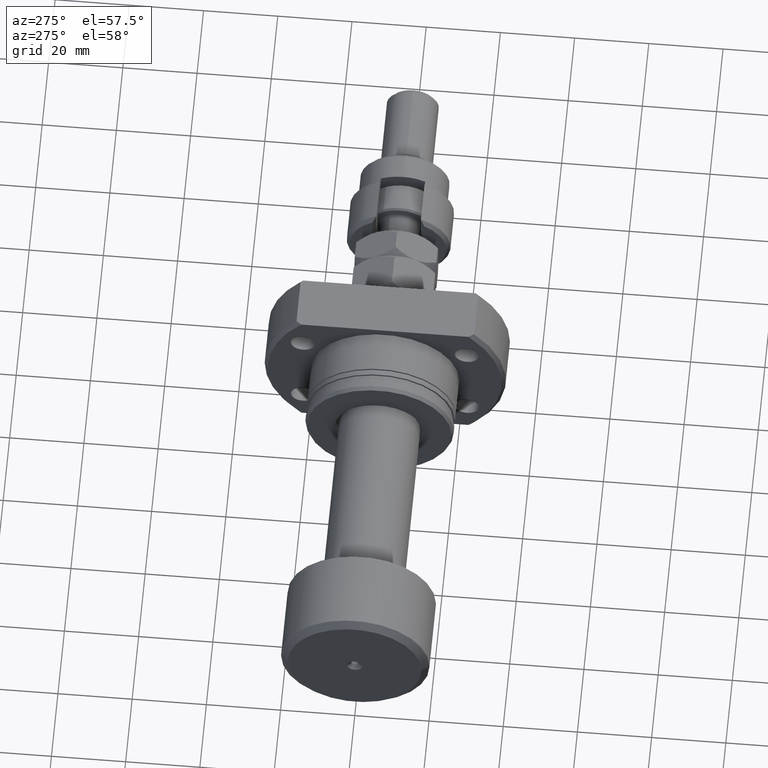
[diagram: clean part render]
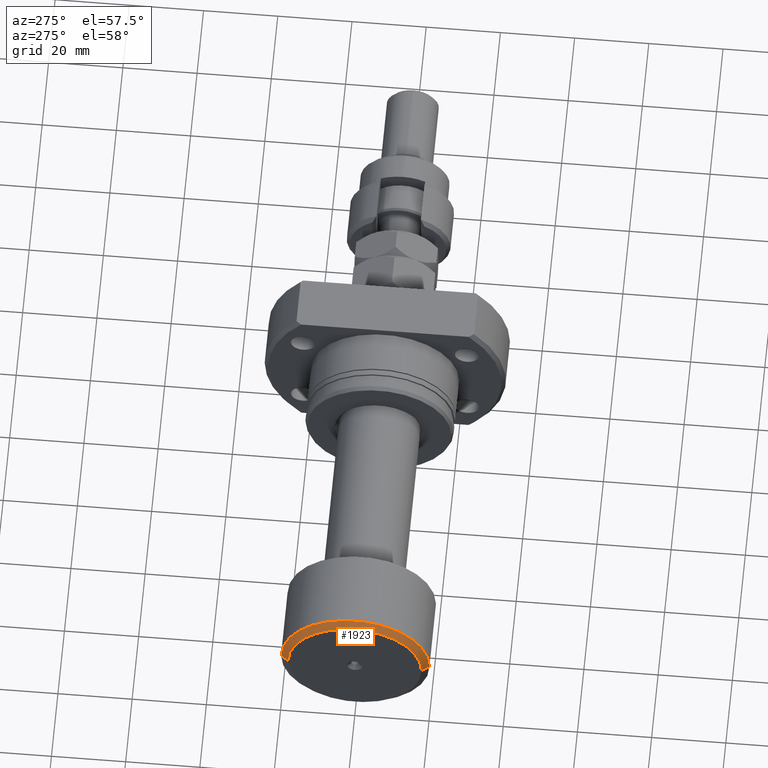
[diagram: same view with one face highlighted and labeled with its STEP entity id]
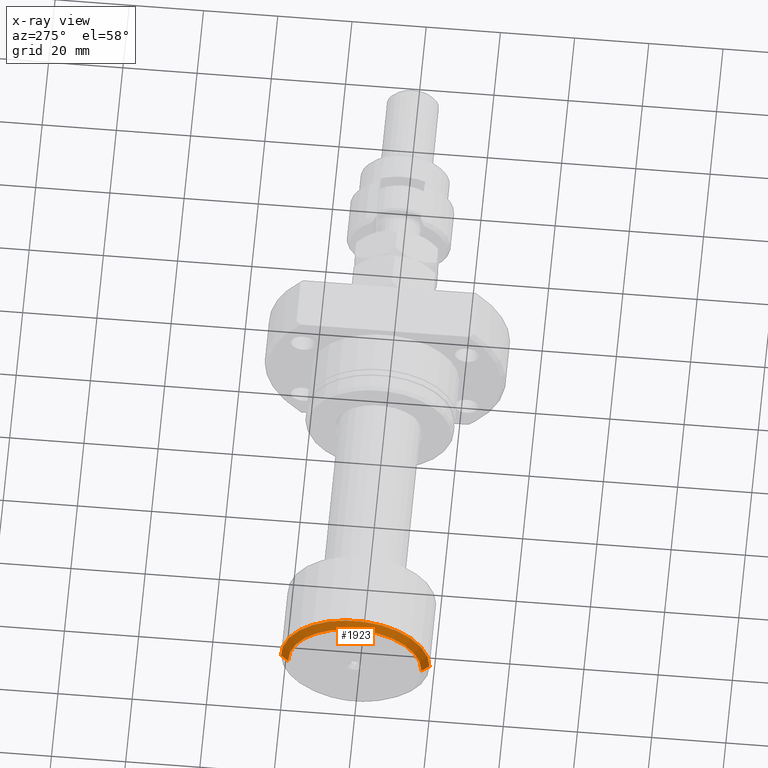
[diagram: x-ray of the same camera — body ghosted, the highlighted face saturated]
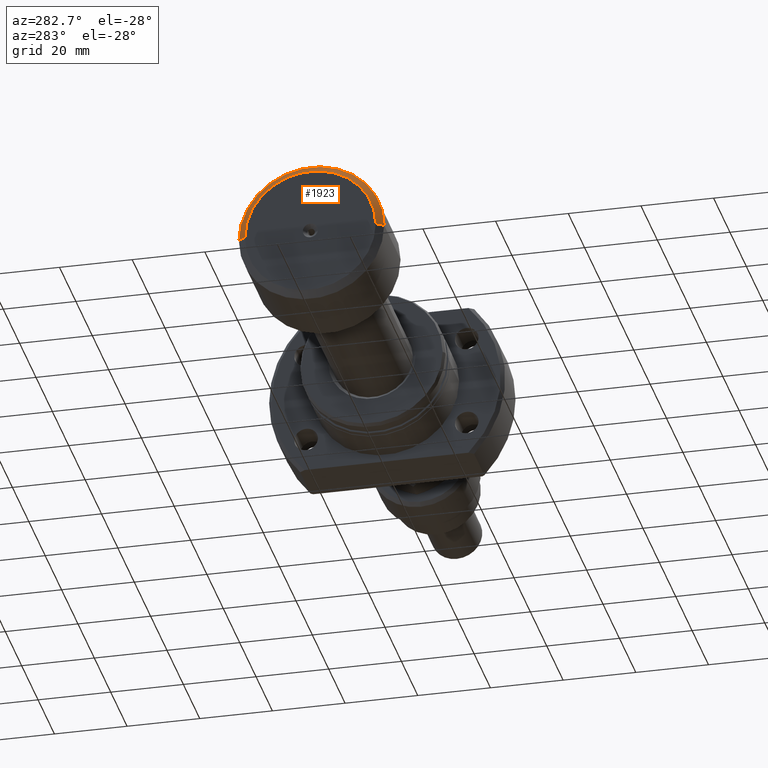
[diagram: same view with one face highlighted and labeled with its STEP entity id]
A machine part, auxiliary view. The second image highlights one B-rep face of the part: STEP entity #1923.
The next image is the same camera in x-ray: the body ghosted, the highlighted face saturated — about 0% of this face is hidden behind the body in this view.
A second angle (auxiliary view) of the same face is appended — the face is thin or edge-on in the first view.
In plain terms, the highlighted conical surface has half-angle 53.13 deg.
Its self-contained STEP definition (entity closure, byte-faithful):
#143 = AXIS2_PLACEMENT_3D ( 'NONE', #882, #1371, #2812 ) ;
#177 = LINE ( 'NONE', #4380, #1423 ) ;
#193 = VERTEX_POINT ( 'NONE', #5772 ) ;
#531 = CONICAL_SURFACE ( 'NONE', #2795, 18.00000000000000355, 0.9272952180016115209 ) ;
#882 = CARTESIAN_POINT ( 'NONE',  ( 2.011846620492804129E-15, 2.151755106128676308E-32, 0.000000000000000000 ) ) ;
#995 = EDGE_CURVE ( 'NONE', #3546, #193, #1707, .T. ) ;
#1116 = CARTESIAN_POINT ( 'NONE',  ( 2.011846620492804129E-15, 2.151755106128676308E-32, 0.000000000000000000 ) ) ;
#1360 = VERTEX_POINT ( 'NONE', #4805 ) ;
#1371 = DIRECTION ( 'NONE',  ( -1.000000000000000000, -1.069542322069065801E-17, -0.000000000000000000 ) ) ;
#1423 = VECTOR ( 'NONE', #4874, 1000.000000000000000 ) ;
#1707 = LINE ( 'NONE', #3562, #5787 ) ;
#1791 = DIRECTION ( 'NONE',  ( -1.000000000000000000, -1.069542322069065801E-17, -0.000000000000000000 ) ) ;
#1923 = ADVANCED_FACE ( 'NONE', ( #3112 ), #531, .T. ) ;
#2430 = VERTEX_POINT ( 'NONE', #4142 ) ;
#2762 = DIRECTION ( 'NONE',  ( 1.084202172485504434E-17, -1.000000000000000000, 0.000000000000000000 ) ) ;
#2795 = AXIS2_PLACEMENT_3D ( 'NONE', #1116, #4985, #4366 ) ;
#2812 = DIRECTION ( 'NONE',  ( 1.069542322069065647E-17, -1.000000000000000000, 0.000000000000000000 ) ) ;
#3018 = DIRECTION ( 'NONE',  ( 0.6000000000000005329, 0.7999999999999996003, 0.000000000000000000 ) ) ;
#3112 = FACE_OUTER_BOUND ( 'NONE', #5000, .T. ) ;
#3340 = EDGE_CURVE ( 'NONE', #1360, #3546, #5804, .T. ) ;
#3376 = CIRCLE ( 'NONE', #4266, 20.00000000000000000 ) ;
#3546 = VERTEX_POINT ( 'NONE', #4700 ) ;
#3562 = CARTESIAN_POINT ( 'NONE',  ( 1.819329002520372041E-15, 18.00000000000000355, 0.000000000000000000 ) ) ;
#4043 = CARTESIAN_POINT ( 'NONE',  ( 1.500000000000002442, 1.604313483103601552E-17, 0.000000000000000000 ) ) ;
#4142 = CARTESIAN_POINT ( 'NONE',  ( 1.500000000000002887, -20.00000000000000000, 2.449293598294706513E-15 ) ) ;
#4168 = EDGE_CURVE ( 'NONE', #1360, #2430, #177, .T. ) ;
#4187 = ORIENTED_EDGE ( 'NONE', *, *, #995, .F. ) ;
#4198 = ORIENTED_EDGE ( 'NONE', *, *, #3340, .F. ) ;
#4266 = AXIS2_PLACEMENT_3D ( 'NONE', #4043, #1791, #2762 ) ;
#4281 = EDGE_CURVE ( 'NONE', #2430, #193, #3376, .T. ) ;
#4366 = DIRECTION ( 'NONE',  ( -1.069542322069065647E-17, 1.000000000000000000, 0.000000000000000000 ) ) ;
#4380 = CARTESIAN_POINT ( 'NONE',  ( 2.204364238465235822E-15, -18.00000000000000355, 2.204364238465235822E-15 ) ) ;
#4700 = CARTESIAN_POINT ( 'NONE',  ( 1.819329002520372041E-15, 18.00000000000000355, 0.000000000000000000 ) ) ;
#4805 = CARTESIAN_POINT ( 'NONE',  ( 2.204364238465235822E-15, -18.00000000000000355, 2.326828918379971365E-15 ) ) ;
#4874 = DIRECTION ( 'NONE',  ( 0.6000000000000005329, -0.7999999999999996003, 9.797174393178821220E-17 ) ) ;
#4985 = DIRECTION ( 'NONE',  ( 1.000000000000000000, 1.069542322069065801E-17, 0.000000000000000000 ) ) ;
#5000 = EDGE_LOOP ( 'NONE', ( #4198, #5107, #5287, #4187 ) ) ;
#5107 = ORIENTED_EDGE ( 'NONE', *, *, #4168, .T. ) ;
#5287 = ORIENTED_EDGE ( 'NONE', *, *, #4281, .T. ) ;
#5772 = CARTESIAN_POINT ( 'NONE',  ( 1.500000000000002442, 20.00000000000000000, 0.000000000000000000 ) ) ;
#5787 = VECTOR ( 'NONE', #3018, 1000.000000000000000 ) ;
#5804 = CIRCLE ( 'NONE', #143, 18.00000000000000355 ) ;